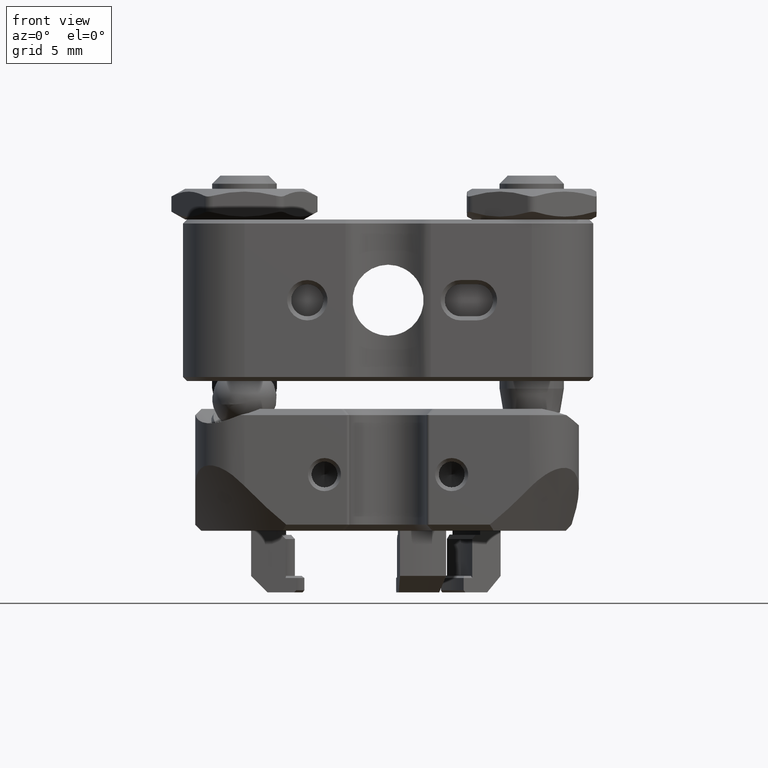
[diagram: clean part render]
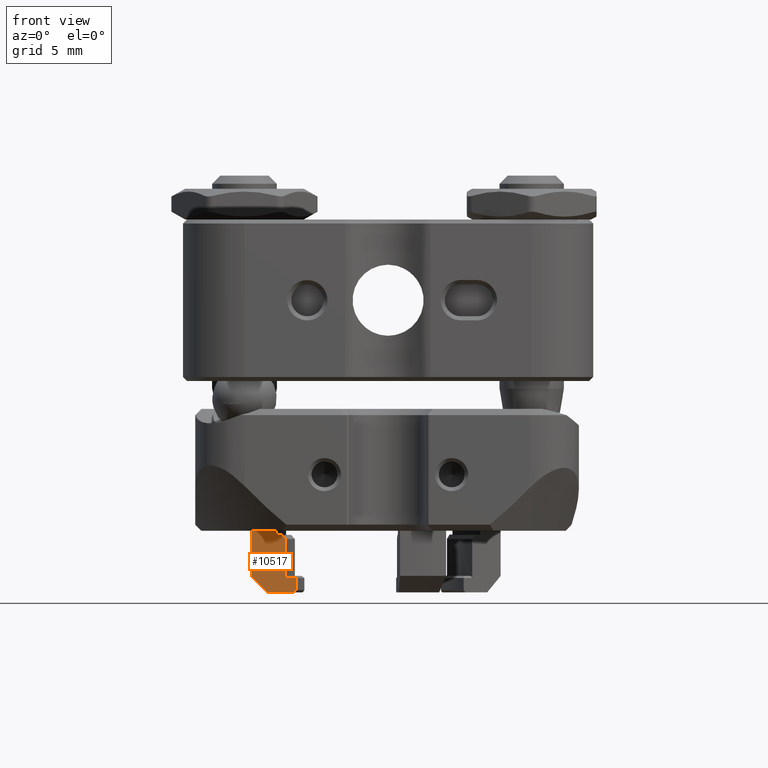
[diagram: same view with one face highlighted and labeled with its STEP entity id]
A machine part, front view. The second image highlights one B-rep face of the part: STEP entity #10517.
In plain terms, the highlighted planar face has unit normal (-0.0872, -0.9962, 0).
Its self-contained STEP definition (entity closure, byte-faithful):
#93 = CARTESIAN_POINT ( 'NONE',  ( 4.560488005548355872, 2.332545844380494060, 2.374900000000026878 ) ) ;
#152 = VECTOR ( 'NONE', #3417, 1000.000000000000000 ) ;
#189 = EDGE_CURVE ( 'NONE', #8621, #10146, #7637, .T. ) ;
#369 = VECTOR ( 'NONE', #11182, 1000.000000000000114 ) ;
#479 = ORIENTED_EDGE ( 'NONE', *, *, #189, .T. ) ;
#600 = DIRECTION ( 'NONE',  ( 0.9961946980917458783, 0.08715574274765330864, 0.000000000000000000 ) ) ;
#925 = ORIENTED_EDGE ( 'NONE', *, *, #4654, .F. ) ;
#1304 = LINE ( 'NONE', #6271, #369 ) ;
#1319 = DIRECTION ( 'NONE',  ( 0.08715574274765332252, -0.9961946980917459893, 0.000000000000000000 ) ) ;
#1420 = VERTEX_POINT ( 'NONE', #93 ) ;
#1436 = DIRECTION ( 'NONE',  ( 0.9961946980917458783, 0.08715574274765329477, 0.000000000000000000 ) ) ;
#1797 = CARTESIAN_POINT ( 'NONE',  ( -1.777999999999996694, 1.778000000000000247, 13.16990000000006056 ) ) ;
#1911 = EDGE_CURVE ( 'NONE', #8621, #8749, #8209, .T. ) ;
#1979 = CARTESIAN_POINT ( 'NONE',  ( 4.560488005548355872, 2.332545844380494060, 4.787900000000004930 ) ) ;
#2227 = VERTEX_POINT ( 'NONE', #11825 ) ;
#2608 = CARTESIAN_POINT ( 'NONE',  ( 6.698620686062673357, 2.519608215039782273, 1.866900000000000670 ) ) ;
#2746 = ORIENTED_EDGE ( 'NONE', *, *, #1911, .F. ) ;
#3417 = DIRECTION ( 'NONE',  ( -0.000000000000000000, -0.000000000000000000, -1.000000000000000000 ) ) ;
#3950 = PLANE ( 'NONE',  #8470 ) ;
#4026 = CARTESIAN_POINT ( 'NONE',  ( 4.560488005548355872, 2.332545844380494060, 4.787899999999999601 ) ) ;
#4171 = VECTOR ( 'NONE', #13692, 1000.000000000000000 ) ;
#4228 = EDGE_CURVE ( 'NONE', #14031, #10880, #8979, .T. ) ;
#4554 = ORIENTED_EDGE ( 'NONE', *, *, #6403, .T. ) ;
#4654 = EDGE_CURVE ( 'NONE', #12994, #14784, #15170, .T. ) ;
#4902 = CARTESIAN_POINT ( 'NONE',  ( 5.686486872801473247, 2.431057980408168007, 5.676900000000000723 ) ) ;
#5073 = ORIENTED_EDGE ( 'NONE', *, *, #7261, .T. ) ;
#5077 = CARTESIAN_POINT ( 'NONE',  ( -1.777999999999996694, 1.778000000000000247, 8.737600000000130152 ) ) ;
#5144 = VECTOR ( 'NONE', #6688, 1000.000000000000114 ) ;
#5286 = CARTESIAN_POINT ( 'NONE',  ( 6.698620686062673357, 2.519608215039782273, 4.660900000000006926 ) ) ;
#5665 = VECTOR ( 'NONE', #10478, 1000.000000000000227 ) ;
#6203 = CARTESIAN_POINT ( 'NONE',  ( 5.155116620839319097, 2.384569107226568452, 1.358899999999999331 ) ) ;
#6271 = CARTESIAN_POINT ( 'NONE',  ( -1.777999999999996694, 1.778000000000000247, -0.1650999999999987478 ) ) ;
#6287 = DIRECTION ( 'NONE',  ( -0.000000000000000000, -0.000000000000000000, 1.000000000000000000 ) ) ;
#6313 = ORIENTED_EDGE ( 'NONE', *, *, #13923, .T. ) ;
#6337 = ORIENTED_EDGE ( 'NONE', *, *, #4228, .T. ) ;
#6350 = CARTESIAN_POINT ( 'NONE',  ( -0.1678791375180380407, 1.918867322373746909, 1.866900000000000670 ) ) ;
#6380 = CARTESIAN_POINT ( 'NONE',  ( -0.1678791375180380407, 1.918867322373746909, 5.676900000000000723 ) ) ;
#6402 = CARTESIAN_POINT ( 'NONE',  ( -0.1678791375180380407, 1.918867322373746909, 2.120899999999999341 ) ) ;
#6403 = EDGE_CURVE ( 'NONE', #10880, #2227, #7177, .T. ) ;
#6688 = DIRECTION ( 'NONE',  ( -0.7044160264027568008, -0.06162841671621574480, 0.7071067811865497932 ) ) ;
#6787 = ORIENTED_EDGE ( 'NONE', *, *, #8707, .F. ) ;
#6926 = CARTESIAN_POINT ( 'NONE',  ( 3.915252699594332420, 2.276095069802838822, 1.866900000000000670 ) ) ;
#7130 = VERTEX_POINT ( 'NONE', #10565 ) ;
#7177 = LINE ( 'NONE', #6203, #152 ) ;
#7261 = EDGE_CURVE ( 'NONE', #1420, #14031, #11183, .T. ) ;
#7352 = CARTESIAN_POINT ( 'NONE',  ( 3.915252699594332420, 2.276095069802838822, 4.787899999999990719 ) ) ;
#7637 = LINE ( 'NONE', #4026, #10076 ) ;
#7642 = FACE_OUTER_BOUND ( 'NONE', #7730, .T. ) ;
#7730 = EDGE_LOOP ( 'NONE', ( #2746, #479, #6787, #5073, #6337, #4554, #11471, #6313, #9032, #925, #13867 ) ) ;
#8057 = CARTESIAN_POINT ( 'NONE',  ( 4.813521458863676550, 2.354683403038399181, 2.120899999999999341 ) ) ;
#8130 = CARTESIAN_POINT ( 'NONE',  ( 4.041769426251984321, 2.287163849131791160, 5.676900000000000723 ) ) ;
#8174 = VERTEX_POINT ( 'NONE', #5286 ) ;
#8209 = LINE ( 'NONE', #6926, #8705 ) ;
#8470 = AXIS2_PLACEMENT_3D ( 'NONE', #6350, #1319, #8763 ) ;
#8621 = VERTEX_POINT ( 'NONE', #7352 ) ;
#8691 = CARTESIAN_POINT ( 'NONE',  ( 3.915252699594332420, 2.276095069802838822, 5.549900000000000055 ) ) ;
#8705 = VECTOR ( 'NONE', #11609, 1000.000000000000000 ) ;
#8707 = EDGE_CURVE ( 'NONE', #1420, #10146, #11127, .T. ) ;
#8749 = VERTEX_POINT ( 'NONE', #8691 ) ;
#8763 = DIRECTION ( 'NONE',  ( 0.9961946980917458783, 0.08715574274765330864, 0.000000000000000000 ) ) ;
#8929 = CARTESIAN_POINT ( 'NONE',  ( -0.1678791375180380407, 1.918867322373746909, 1.866900000000000670 ) ) ;
#8979 = LINE ( 'NONE', #6402, #9139 ) ;
#9032 = ORIENTED_EDGE ( 'NONE', *, *, #12862, .T. ) ;
#9139 = VECTOR ( 'NONE', #11492, 1000.000000000000114 ) ;
#10076 = VECTOR ( 'NONE', #600, 1000.000000000000114 ) ;
#10146 = VERTEX_POINT ( 'NONE', #1979 ) ;
#10163 = LINE ( 'NONE', #2608, #11647 ) ;
#10478 = DIRECTION ( 'NONE',  ( 0.9961946980917458783, 0.08715574274765329477, 0.000000000000000000 ) ) ;
#10517 = ADVANCED_FACE ( 'NONE', ( #7642 ), #3950, .T. ) ;
#10565 = CARTESIAN_POINT ( 'NONE',  ( 6.698620686062673357, 2.519608215039782273, 1.866900000000000670 ) ) ;
#10880 = VERTEX_POINT ( 'NONE', #13426 ) ;
#10953 = DIRECTION ( 'NONE',  ( 0.7044160264027529150, 0.06162841671621539785, -0.7071067811865535679 ) ) ;
#11127 = LINE ( 'NONE', #13610, #4171 ) ;
#11182 = DIRECTION ( 'NONE',  ( -0.7044160264027590213, -0.06162841671621593215, -0.7071067811865474617 ) ) ;
#11183 = LINE ( 'NONE', #5077, #15513 ) ;
#11471 = ORIENTED_EDGE ( 'NONE', *, *, #12841, .T. ) ;
#11492 = DIRECTION ( 'NONE',  ( 0.9961946980917458783, 0.08715574274765330864, 0.000000000000000000 ) ) ;
#11516 = LINE ( 'NONE', #8929, #5665 ) ;
#11609 = DIRECTION ( 'NONE',  ( -0.000000000000000000, -0.000000000000000000, 1.000000000000000000 ) ) ;
#11647 = VECTOR ( 'NONE', #6287, 1000.000000000000000 ) ;
#11825 = CARTESIAN_POINT ( 'NONE',  ( 5.155116620839319097, 2.384569107226568452, 1.866900000000000670 ) ) ;
#12841 = EDGE_CURVE ( 'NONE', #2227, #7130, #11516, .T. ) ;
#12862 = EDGE_CURVE ( 'NONE', #8174, #14784, #14164, .T. ) ;
#12994 = VERTEX_POINT ( 'NONE', #8130 ) ;
#13426 = CARTESIAN_POINT ( 'NONE',  ( 5.155116620839319985, 2.384569107226568452, 2.120899999999999341 ) ) ;
#13610 = CARTESIAN_POINT ( 'NONE',  ( 4.560488005548355872, 2.332545844380494060, 23.67333326662258131 ) ) ;
#13692 = DIRECTION ( 'NONE',  ( 0.000000000000000000, 0.000000000000000000, 1.000000000000000000 ) ) ;
#13867 = ORIENTED_EDGE ( 'NONE', *, *, #14426, .T. ) ;
#13884 = VECTOR ( 'NONE', #1436, 1000.000000000000227 ) ;
#13923 = EDGE_CURVE ( 'NONE', #7130, #8174, #10163, .T. ) ;
#14031 = VERTEX_POINT ( 'NONE', #8057 ) ;
#14164 = LINE ( 'NONE', #1797, #5144 ) ;
#14426 = EDGE_CURVE ( 'NONE', #12994, #8749, #1304, .T. ) ;
#14784 = VERTEX_POINT ( 'NONE', #4902 ) ;
#15170 = LINE ( 'NONE', #6380, #13884 ) ;
#15513 = VECTOR ( 'NONE', #10953, 1000.000000000000000 ) ;